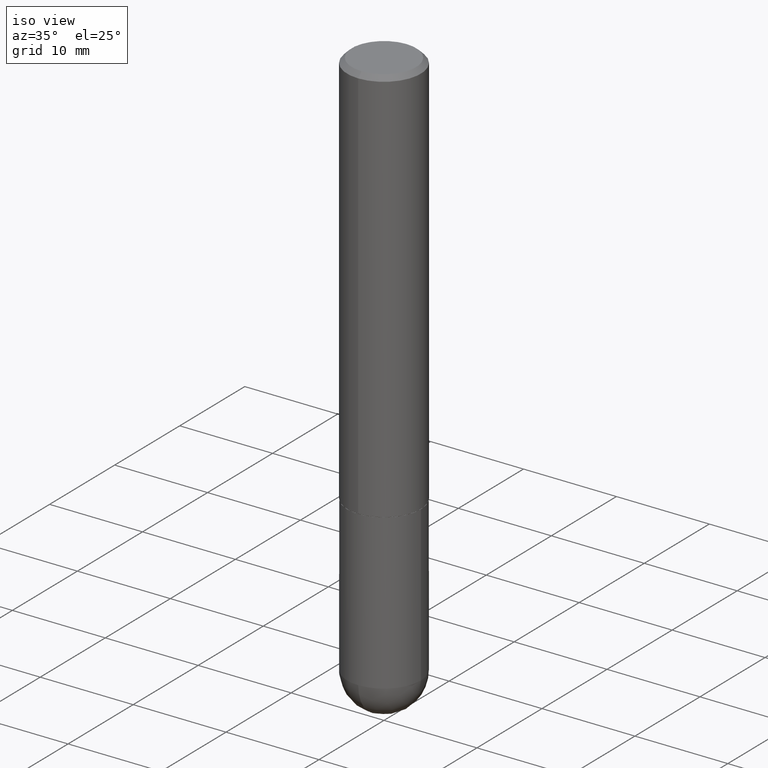
[diagram: clean part render]
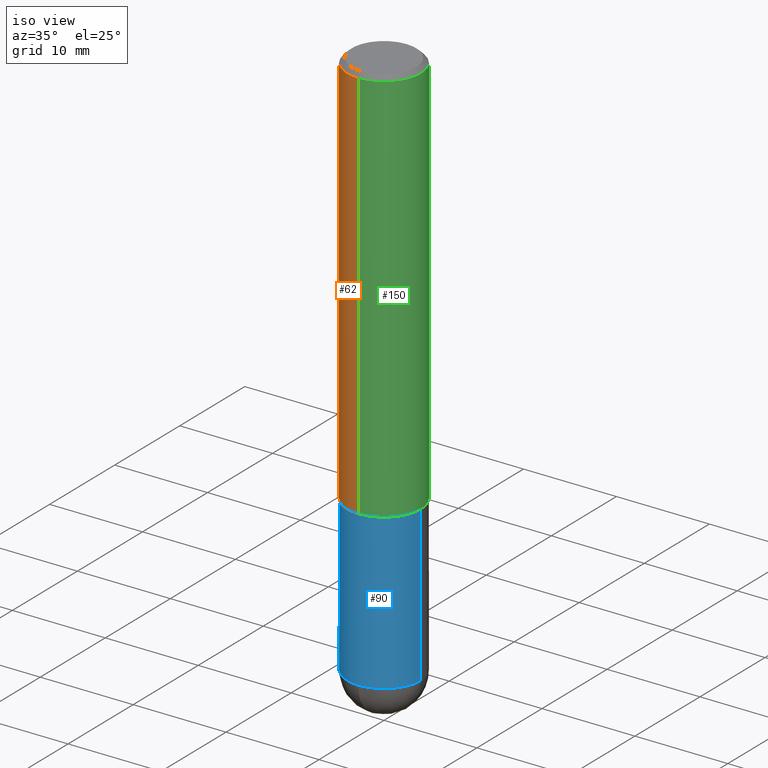
[diagram: same view with three faces highlighted in distinct colors, each labeled with its STEP entity id]
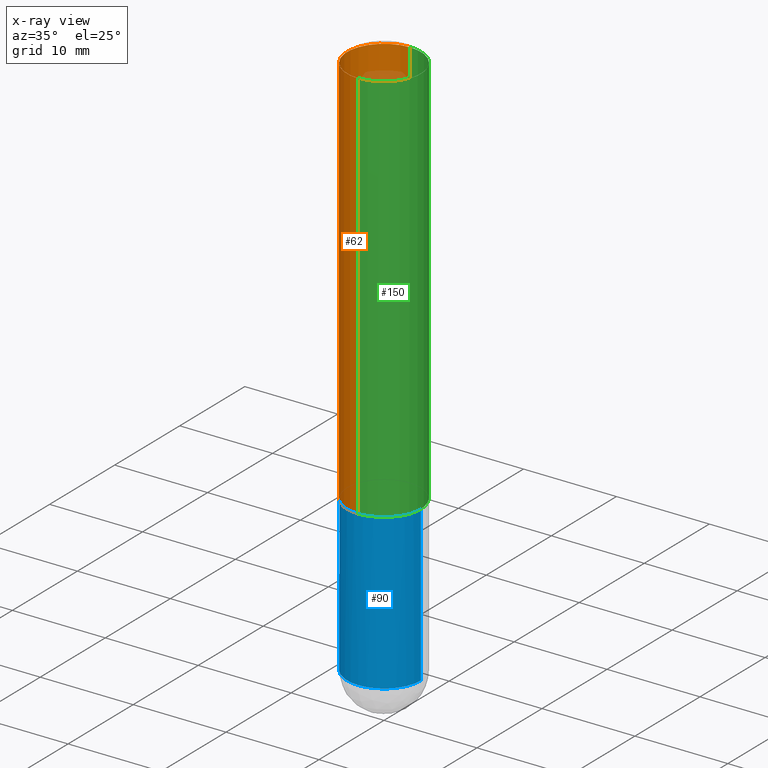
[diagram: x-ray of the same camera — body ghosted, the three highlighted faces saturated]
A machine part, iso view with three faces highlighted in distinct colors.
The next image is the same camera in x-ray (body ghosted, the three faces saturated) — at least one of them is partly hidden behind the body in this view.
Their STEP definitions:

[orange] entity #62 — the highlighted cylindrical surface (partial cylindrical patch) has radius 3.9688 mm, axis along (-0, 0, 1).
#2 = CIRCLE ( 'NONE', #44, 0.1562500000000000000 ) ;
#4 = DIRECTION ( 'NONE',  ( -2.445472597884424153E-29, 3.491475908913955504E-15, 1.000000000000000000 ) ) ;
#8 = FACE_OUTER_BOUND ( 'NONE', #209, .T. ) ;
#11 = AXIS2_PLACEMENT_3D ( 'NONE', #174, #4, #116 ) ;
#34 = EDGE_CURVE ( 'NONE', #258, #369, #2, .T. ) ;
#39 = DIRECTION ( 'NONE',  ( -6.982962677686265133E-15, -1.000000000000000000, 3.496765431890256920E-15 ) ) ;
#41 = CARTESIAN_POINT ( 'NONE',  ( 4.890945195768856715E-31, -6.982951817827922742E-17, -0.02000000000000003511 ) ) ;
#44 = AXIS2_PLACEMENT_3D ( 'NONE', #41, #109, #39 ) ;
#46 = ORIENTED_EDGE ( 'NONE', *, *, #239, .F. ) ;
#62 = ADVANCED_FACE ( 'NONE', ( #8 ), #293, .T. ) ;
#64 = CARTESIAN_POINT ( 'NONE',  ( 1.110223024625178431E-15, 0.1562499999999943379, -1.687000000000000499 ) ) ;
#67 = CARTESIAN_POINT ( 'NONE',  ( -1.071952812151801215E-15, -0.1562500000000000833, -0.01999999999999948694 ) ) ;
#77 = VERTEX_POINT ( 'NONE', #296 ) ;
#80 = DIRECTION ( 'NONE',  ( -2.445472597884424153E-29, 3.491475908913955504E-15, 1.000000000000000000 ) ) ;
#81 = VERTEX_POINT ( 'NONE', #64 ) ;
#99 = EDGE_CURVE ( 'NONE', #81, #77, #374, .T. ) ;
#104 = CARTESIAN_POINT ( 'NONE',  ( 0.000000000000000000, 0.000000000000000000, 0.000000000000000000 ) ) ;
#109 = DIRECTION ( 'NONE',  ( -2.445472597884424153E-29, 3.491475908913955504E-15, 1.000000000000000000 ) ) ;
#116 = DIRECTION ( 'NONE',  ( -6.982962677686265922E-15, -1.000000000000000000, 3.496765431890251792E-15 ) ) ;
#125 = LINE ( 'NONE', #312, #409 ) ;
#135 = DIRECTION ( 'NONE',  ( -6.982962677686265922E-15, -1.000000000000000000, 3.491475908913955504E-15 ) ) ;
#153 = AXIS2_PLACEMENT_3D ( 'NONE', #104, #80, #135 ) ;
#155 = DIRECTION ( 'NONE',  ( -2.445472597884423873E-29, 3.491475908913955110E-15, 1.000000000000000000 ) ) ;
#174 = CARTESIAN_POINT ( 'NONE',  ( 4.125512272631024333E-29, -5.890119858337843622E-15, -1.687000000000000055 ) ) ;
#193 = LINE ( 'NONE', #220, #338 ) ;
#209 = EDGE_LOOP ( 'NONE', ( #46, #284, #262, #261 ) ) ;
#220 = CARTESIAN_POINT ( 'NONE',  ( -1.091087918388479765E-15, -0.1562500000000001110, 5.455431107678059296E-16 ) ) ;
#239 = EDGE_CURVE ( 'NONE', #81, #258, #125, .T. ) ;
#258 = VERTEX_POINT ( 'NONE', #350 ) ;
#261 = ORIENTED_EDGE ( 'NONE', *, *, #34, .F. ) ;
#262 = ORIENTED_EDGE ( 'NONE', *, *, #279, .T. ) ;
#279 = EDGE_CURVE ( 'NONE', #77, #369, #193, .T. ) ;
#284 = ORIENTED_EDGE ( 'NONE', *, *, #99, .T. ) ;
#293 = CYLINDRICAL_SURFACE ( 'NONE', #153, 0.1562500000000001110 ) ;
#296 = CARTESIAN_POINT ( 'NONE',  ( -1.091087918388439336E-15, -0.1562500000000060785, -1.686999999999999611 ) ) ;
#312 = CARTESIAN_POINT ( 'NONE',  ( 1.110223024625157132E-15, 0.1562500000000001110, -5.455431107678059296E-16 ) ) ;
#338 = VECTOR ( 'NONE', #362, 39.37007874015748143 ) ;
#350 = CARTESIAN_POINT ( 'NONE',  ( 1.091087918388479568E-15, 0.1562499999999999445, -0.02000000000000057981 ) ) ;
#362 = DIRECTION ( 'NONE',  ( -2.445472597884423873E-29, 3.491475908913955110E-15, 1.000000000000000000 ) ) ;
#369 = VERTEX_POINT ( 'NONE', #67 ) ;
#374 = CIRCLE ( 'NONE', #11, 0.1562500000000002220 ) ;
#409 = VECTOR ( 'NONE', #155, 39.37007874015748143 ) ;

[blue] entity #90 — the highlighted cylindrical surface (partial cylindrical patch) has radius 3.9688 mm, axis along (-0, 0, 1).
#3 = DIRECTION ( 'NONE',  ( 1.000000000000000000, -6.982962677686269077E-15, 0.000000000000000000 ) ) ;
#10 = VERTEX_POINT ( 'NONE', #169 ) ;
#15 = DIRECTION ( 'NONE',  ( -2.445468806185136877E-29, 3.491481338843145188E-15, 1.000000000000000000 ) ) ;
#26 = DIRECTION ( 'NONE',  ( -2.445468806185136597E-29, 3.491481338843145583E-15, 1.000000000000000000 ) ) ;
#30 = EDGE_CURVE ( 'NONE', #400, #10, #132, .T. ) ;
#37 = DIRECTION ( 'NONE',  ( -2.445468806185136597E-29, 3.491481338843145583E-15, 1.000000000000000000 ) ) ;
#51 = CARTESIAN_POINT ( 'NONE',  ( 0.000000000000000000, 0.000000000000000000, 0.000000000000000000 ) ) ;
#53 = CIRCLE ( 'NONE', #218, 0.1562500000000000000 ) ;
#60 = CARTESIAN_POINT ( 'NONE',  ( 0.1562500000000000000, -6.984708418355709513E-15, -1.688000000000000167 ) ) ;
#61 = DIRECTION ( 'NONE',  ( -2.445468806185136597E-29, 3.491481338843145583E-15, 1.000000000000000000 ) ) ;
#74 = VERTEX_POINT ( 'NONE', #146 ) ;
#79 = ORIENTED_EDGE ( 'NONE', *, *, #352, .T. ) ;
#90 = ADVANCED_FACE ( 'NONE', ( #187 ), #277, .T. ) ;
#102 = DIRECTION ( 'NONE',  ( -2.445468806185136877E-29, 3.491481338843145188E-15, 1.000000000000000000 ) ) ;
#115 = ORIENTED_EDGE ( 'NONE', *, *, #30, .F. ) ;
#129 = CIRCLE ( 'NONE', #313, 0.1562500000000000000 ) ;
#132 = LINE ( 'NONE', #321, #172 ) ;
#146 = CARTESIAN_POINT ( 'NONE',  ( 0.1562500000000000000, -8.129477862328905246E-15, -2.343750000000000000 ) ) ;
#157 = LINE ( 'NONE', #164, #248 ) ;
#164 = CARTESIAN_POINT ( 'NONE',  ( 0.1562500000000000000, -1.091087918388479174E-15, 7.619026212181150377E-30 ) ) ;
#169 = CARTESIAN_POINT ( 'NONE',  ( -0.1562500000000000000, -5.928166919315269532E-15, -1.688000000000000167 ) ) ;
#171 = DIRECTION ( 'NONE',  ( 1.000000000000000000, -6.982962677686266711E-15, 4.876176775795936353E-29 ) ) ;
#172 = VECTOR ( 'NONE', #15, 39.37007874015748143 ) ;
#186 = AXIS2_PLACEMENT_3D ( 'NONE', #51, #26, #171 ) ;
#187 = FACE_OUTER_BOUND ( 'NONE', #227, .T. ) ;
#196 = CARTESIAN_POINT ( 'NONE',  ( -0.1562500000000000000, -5.928166919315270321E-15, -2.343750000000000000 ) ) ;
#199 = CARTESIAN_POINT ( 'NONE',  ( 5.731567514496413899E-29, -8.183159387913622595E-15, -2.343750000000000000 ) ) ;
#207 = VERTEX_POINT ( 'NONE', #60 ) ;
#218 = AXIS2_PLACEMENT_3D ( 'NONE', #317, #355, #280 ) ;
#221 = EDGE_CURVE ( 'NONE', #10, #207, #129, .T. ) ;
#227 = EDGE_LOOP ( 'NONE', ( #115, #79, #229, #257, #402 ) ) ;
#229 = ORIENTED_EDGE ( 'NONE', *, *, #294, .T. ) ;
#248 = VECTOR ( 'NONE', #102, 39.37007874015748143 ) ;
#257 = ORIENTED_EDGE ( 'NONE', *, *, #270, .T. ) ;
#270 = EDGE_CURVE ( 'NONE', #74, #207, #157, .T. ) ;
#277 = CYLINDRICAL_SURFACE ( 'NONE', #186, 0.1562500000000000000 ) ;
#278 = DIRECTION ( 'NONE',  ( 1.000000000000000000, -6.982962677686262766E-15, 0.000000000000000000 ) ) ;
#280 = DIRECTION ( 'NONE',  ( 1.000000000000000000, -6.982962677686262766E-15, 0.000000000000000000 ) ) ;
#285 = CARTESIAN_POINT ( 'NONE',  ( -1.110223024625101517E-15, -0.1562500000000085487, -2.343749999999999556 ) ) ;
#294 = EDGE_CURVE ( 'NONE', #337, #74, #53, .T. ) ;
#304 = CIRCLE ( 'NONE', #368, 0.1562500000000000000 ) ;
#313 = AXIS2_PLACEMENT_3D ( 'NONE', #405, #61, #3 ) ;
#317 = CARTESIAN_POINT ( 'NONE',  ( 5.731567514496413899E-29, -8.183159387913622595E-15, -2.343750000000000000 ) ) ;
#321 = CARTESIAN_POINT ( 'NONE',  ( -0.1562500000000000000, 1.110223024625156540E-15, -7.685836078523291160E-30 ) ) ;
#337 = VERTEX_POINT ( 'NONE', #285 ) ;
#352 = EDGE_CURVE ( 'NONE', #400, #337, #304, .T. ) ;
#355 = DIRECTION ( 'NONE',  ( -2.445468806185136597E-29, 3.491481338843145583E-15, 1.000000000000000000 ) ) ;
#368 = AXIS2_PLACEMENT_3D ( 'NONE', #199, #37, #278 ) ;
#400 = VERTEX_POINT ( 'NONE', #196 ) ;
#402 = ORIENTED_EDGE ( 'NONE', *, *, #221, .F. ) ;
#405 = CARTESIAN_POINT ( 'NONE',  ( 4.127951344840510809E-29, -5.893620499967230340E-15, -1.688000000000000167 ) ) ;

[green] entity #150 — the highlighted cylindrical surface (partial cylindrical patch) has radius 3.9688 mm, axis along (-0, 0, 1).
#52 = ORIENTED_EDGE ( 'NONE', *, *, #279, .F. ) ;
#64 = CARTESIAN_POINT ( 'NONE',  ( 1.110223024625178431E-15, 0.1562499999999943379, -1.687000000000000499 ) ) ;
#67 = CARTESIAN_POINT ( 'NONE',  ( -1.071952812151801215E-15, -0.1562500000000000833, -0.01999999999999948694 ) ) ;
#77 = VERTEX_POINT ( 'NONE', #296 ) ;
#81 = VERTEX_POINT ( 'NONE', #64 ) ;
#89 = CYLINDRICAL_SURFACE ( 'NONE', #263, 0.1562500000000001110 ) ;
#93 = AXIS2_PLACEMENT_3D ( 'NONE', #145, #339, #385 ) ;
#107 = ORIENTED_EDGE ( 'NONE', *, *, #239, .T. ) ;
#111 = ORIENTED_EDGE ( 'NONE', *, *, #348, .F. ) ;
#125 = LINE ( 'NONE', #312, #409 ) ;
#145 = CARTESIAN_POINT ( 'NONE',  ( 4.125512272631024333E-29, -5.890119858337843622E-15, -1.687000000000000055 ) ) ;
#150 = ADVANCED_FACE ( 'NONE', ( #243 ), #89, .T. ) ;
#154 = DIRECTION ( 'NONE',  ( -6.982962677686265922E-15, -1.000000000000000000, 3.491475908913955504E-15 ) ) ;
#155 = DIRECTION ( 'NONE',  ( -2.445472597884423873E-29, 3.491475908913955110E-15, 1.000000000000000000 ) ) ;
#176 = EDGE_CURVE ( 'NONE', #77, #81, #311, .T. ) ;
#193 = LINE ( 'NONE', #220, #338 ) ;
#201 = ORIENTED_EDGE ( 'NONE', *, *, #176, .T. ) ;
#220 = CARTESIAN_POINT ( 'NONE',  ( -1.091087918388479765E-15, -0.1562500000000001110, 5.455431107678059296E-16 ) ) ;
#239 = EDGE_CURVE ( 'NONE', #81, #258, #125, .T. ) ;
#243 = FACE_OUTER_BOUND ( 'NONE', #290, .T. ) ;
#244 = AXIS2_PLACEMENT_3D ( 'NONE', #246, #353, #316 ) ;
#245 = CARTESIAN_POINT ( 'NONE',  ( 0.000000000000000000, 0.000000000000000000, 0.000000000000000000 ) ) ;
#246 = CARTESIAN_POINT ( 'NONE',  ( 4.890945195768856715E-31, -6.982951817827922742E-17, -0.02000000000000003511 ) ) ;
#258 = VERTEX_POINT ( 'NONE', #350 ) ;
#263 = AXIS2_PLACEMENT_3D ( 'NONE', #245, #370, #154 ) ;
#279 = EDGE_CURVE ( 'NONE', #77, #369, #193, .T. ) ;
#290 = EDGE_LOOP ( 'NONE', ( #201, #107, #111, #52 ) ) ;
#296 = CARTESIAN_POINT ( 'NONE',  ( -1.091087918388439336E-15, -0.1562500000000060785, -1.686999999999999611 ) ) ;
#311 = CIRCLE ( 'NONE', #93, 0.1562500000000002220 ) ;
#312 = CARTESIAN_POINT ( 'NONE',  ( 1.110223024625157132E-15, 0.1562500000000001110, -5.455431107678059296E-16 ) ) ;
#316 = DIRECTION ( 'NONE',  ( -6.982962677686265133E-15, -1.000000000000000000, 3.496765431890256920E-15 ) ) ;
#318 = CIRCLE ( 'NONE', #244, 0.1562500000000000000 ) ;
#338 = VECTOR ( 'NONE', #362, 39.37007874015748143 ) ;
#339 = DIRECTION ( 'NONE',  ( -2.445472597884424153E-29, 3.491475908913955504E-15, 1.000000000000000000 ) ) ;
#348 = EDGE_CURVE ( 'NONE', #369, #258, #318, .T. ) ;
#350 = CARTESIAN_POINT ( 'NONE',  ( 1.091087918388479568E-15, 0.1562499999999999445, -0.02000000000000057981 ) ) ;
#353 = DIRECTION ( 'NONE',  ( -2.445472597884424153E-29, 3.491475908913955504E-15, 1.000000000000000000 ) ) ;
#362 = DIRECTION ( 'NONE',  ( -2.445472597884423873E-29, 3.491475908913955110E-15, 1.000000000000000000 ) ) ;
#369 = VERTEX_POINT ( 'NONE', #67 ) ;
#370 = DIRECTION ( 'NONE',  ( -2.445472597884424153E-29, 3.491475908913955504E-15, 1.000000000000000000 ) ) ;
#385 = DIRECTION ( 'NONE',  ( -6.982962677686265922E-15, -1.000000000000000000, 3.496765431890251792E-15 ) ) ;
#409 = VECTOR ( 'NONE', #155, 39.37007874015748143 ) ;